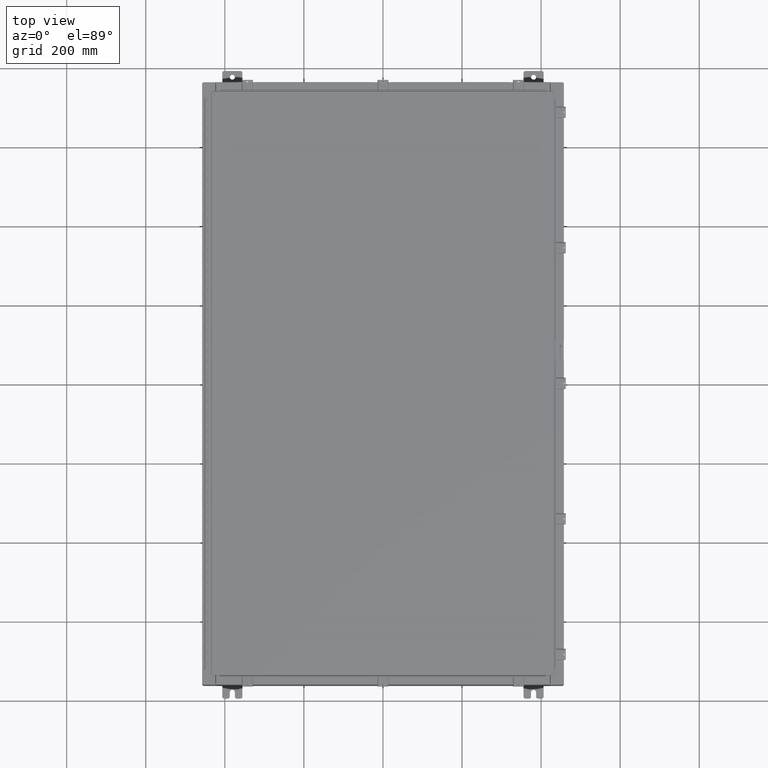
[diagram: clean part render]
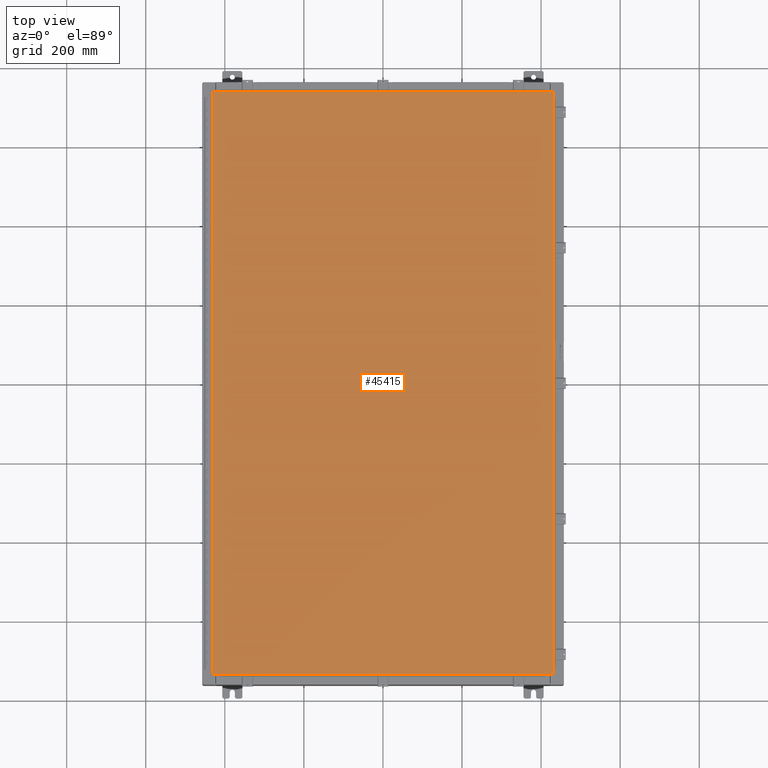
[diagram: same view with one face highlighted and labeled with its STEP entity id]
A machine part, top view. The second image highlights one B-rep face of the part: STEP entity #45415.
In plain terms, the highlighted planar face has unit normal (0, 0, -1).
Its self-contained STEP definition (entity closure, byte-faithful):
#1772 = AXIS2_PLACEMENT_3D ( 'NONE', #14459, #29384, #64169 ) ;
#4133 = VERTEX_POINT ( 'NONE', #17410 ) ;
#5710 = ORIENTED_EDGE ( 'NONE', *, *, #34316, .T. ) ;
#7180 = CARTESIAN_POINT ( 'NONE',  ( 16.99030000000000500, -29.00630000000000000, 0.0000000000000000000 ) ) ;
#12516 = LINE ( 'NONE', #24748, #52099 ) ;
#14459 = CARTESIAN_POINT ( 'NONE',  ( 0.0000000000000000000, 0.0000000000000000000, 0.0000000000000000000 ) ) ;
#14871 = DIRECTION ( 'NONE',  ( 1.000000000000000000, -0.0000000000000000000, -0.0000000000000000000 ) ) ;
#17013 = VERTEX_POINT ( 'NONE', #51524 ) ;
#17410 = CARTESIAN_POINT ( 'NONE',  ( -16.99029999999998400, 29.00630000000000000, 4.370956789862821100E-015 ) ) ;
#19521 = FACE_OUTER_BOUND ( 'NONE', #22994, .T. ) ;
#22994 = EDGE_LOOP ( 'NONE', ( #38207, #54032, #55228, #5710 ) ) ;
#23953 = LINE ( 'NONE', #34817, #48784 ) ;
#24748 = CARTESIAN_POINT ( 'NONE',  ( 16.99030000000000500, 29.00630000000000300, 2.185478394931410600E-015 ) ) ;
#27647 = DIRECTION ( 'NONE',  ( 0.0000000000000000000, -1.000000000000000000, 0.0000000000000000000 ) ) ;
#29384 = DIRECTION ( 'NONE',  ( 0.0000000000000000000, 0.0000000000000000000, -1.000000000000000000 ) ) ;
#30285 = LINE ( 'NONE', #7180, #55135 ) ;
#32209 = DIRECTION ( 'NONE',  ( 0.0000000000000000000, 1.000000000000000000, 0.0000000000000000000 ) ) ;
#32282 = VERTEX_POINT ( 'NONE', #61253 ) ;
#34316 = EDGE_CURVE ( 'NONE', #4133, #17013, #45486, .T. ) ;
#34732 = DIRECTION ( 'NONE',  ( -1.000000000000000000, -0.0000000000000000000, -0.0000000000000000000 ) ) ;
#34817 = CARTESIAN_POINT ( 'NONE',  ( -16.99029999999999800, -29.00630000000000300, 2.185478394931410600E-015 ) ) ;
#38207 = ORIENTED_EDGE ( 'NONE', *, *, #55811, .T. ) ;
#40308 = CARTESIAN_POINT ( 'NONE',  ( 16.99030000000000500, -29.00630000000000000, 0.0000000000000000000 ) ) ;
#45415 = ADVANCED_FACE ( 'NONE', ( #19521 ), #59160, .F. ) ;
#45486 = LINE ( 'NONE', #57411, #47055 ) ;
#47055 = VECTOR ( 'NONE', #27647, 39.37007874015748100 ) ;
#48784 = VECTOR ( 'NONE', #14871, 39.37007874015748100 ) ;
#51524 = CARTESIAN_POINT ( 'NONE',  ( -16.99029999999999800, -29.00630000000000300, 2.185478394931410600E-015 ) ) ;
#52099 = VECTOR ( 'NONE', #34732, 39.37007874015748100 ) ;
#53989 = VERTEX_POINT ( 'NONE', #40308 ) ;
#54032 = ORIENTED_EDGE ( 'NONE', *, *, #54743, .T. ) ;
#54743 = EDGE_CURVE ( 'NONE', #53989, #32282, #30285, .T. ) ;
#55135 = VECTOR ( 'NONE', #32209, 39.37007874015748100 ) ;
#55228 = ORIENTED_EDGE ( 'NONE', *, *, #60776, .T. ) ;
#55811 = EDGE_CURVE ( 'NONE', #17013, #53989, #23953, .T. ) ;
#57411 = CARTESIAN_POINT ( 'NONE',  ( -16.99029999999998400, 29.00630000000000000, 4.370956789862821100E-015 ) ) ;
#59160 = PLANE ( 'NONE',  #1772 ) ;
#60776 = EDGE_CURVE ( 'NONE', #32282, #4133, #12516, .T. ) ;
#61253 = CARTESIAN_POINT ( 'NONE',  ( 16.99030000000000500, 29.00630000000000300, 2.185478394931410600E-015 ) ) ;
#64169 = DIRECTION ( 'NONE',  ( -1.000000000000000000, 0.0000000000000000000, -0.0000000000000000000 ) ) ;